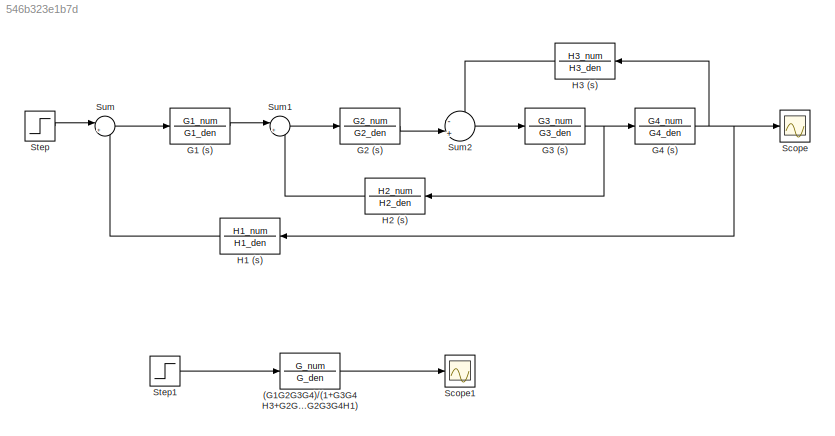
MODEL slx_546b323e1b7d
KIND model
CONFIG AbsTol = auto
CONFIG EnableMultiTasking = off
CONFIG FixedStep = auto
CONFIG MaxStep = auto
CONFIG MinStep = auto
CONFIG RelTol = 1e-3
CONFIG SampleTimeConstraint = Unconstrained
CONFIG SolverName = VariableStepAuto
CONFIG StartTime = 0.0
CONFIG StopTime = 20
BLOCK [TransferFcn] (G1G2G3G4)//(1+G3G4H3+G2G3H2+G1G2G3G4H1)
  Denominator = G_den
  Numerator = G_num
BLOCK [TransferFcn] G1 (s)
  Denominator = G1_den
  Numerator = G1_num
BLOCK [TransferFcn] G2 (s)
  Denominator = G2_den
  Numerator = G2_num
BLOCK [TransferFcn] G3 (s)
  Denominator = G3_den
  Numerator = G3_num
BLOCK [TransferFcn] G4 (s)
  Denominator = G4_den
  Numerator = G4_num
BLOCK [TransferFcn] H1 (s)
  Denominator = H1_den
  Numerator = H1_num
BLOCK [TransferFcn] H2 (s)
  Denominator = H2_den
  Numerator = H2_num
BLOCK [TransferFcn] H3 (s)
  Denominator = H3_den
  Numerator = H3_num
BLOCK [Scope] Scope
  Floating = off
  NumInputPorts = 1
  ScopeSpecificationString = Simulink.scopes.TimeScopeBlockCfg('CurrentConfiguration', extmgr.ConfigurationSet(extmgr.Configuration('Core','General UI',true),extmgr.Configuration('Core','Source UI',true),extmgr.Configuration('Sources','WiredSimulink',true),extmgr.Configuration('Visuals','Time Domain',true,'SerializedDisplays',{struct('MinYLimReal','-19768715178754.66406','MaxYLimReal','2196523908751.54541','YLabelReal','','Mi...<+1455ch>
BLOCK [Scope] Scope1
  Floating = off
  NumInputPorts = 1
  ScopeSpecificationString = Simulink.scopes.TimeScopeBlockCfg('CurrentConfiguration', extmgr.ConfigurationSet(extmgr.Configuration('Core','General UI',true),extmgr.Configuration('Core','Source UI',true),extmgr.Configuration('Sources','WiredSimulink',true,'DataLoggingVariableName','ScopeData1'),extmgr.Configuration('Visuals','Time Domain',true,'SerializedDisplays',{struct('MinYLimReal','-8050519124393.8584','MaxYLimReal','894...<+1591ch>
BLOCK [Step] Step
  SampleTime = 0
  Time = 0
BLOCK [Step] Step1
  SampleTime = 0
  Time = 0
BLOCK [Sum] Sum
  Inputs = |+-
BLOCK [Sum] Sum1
  Inputs = |+-
BLOCK [Sum] Sum2
  Inputs = -|+||
LINE (G1G2G3G4)//(1+G3G4H3+G2G3H2+G1G2G3G4H1):1 -> Scope1:1
LINE G1 (s):1 -> Sum1:1
LINE G2 (s):1 -> Sum2:2
NET G3 (s):1 -> G4 (s):1, H2 (s):1
NET G4 (s):1 -> H1 (s):1, H3 (s):1, Scope:1
LINE H1 (s):1 -> Sum:2
LINE H2 (s):1 -> Sum1:2
LINE H3 (s):1 -> Sum2:1
LINE Step1:1 -> (G1G2G3G4)//(1+G3G4H3+G2G3H2+G1G2G3G4H1):1
LINE Step:1 -> Sum:1
LINE Sum1:1 -> G2 (s):1
LINE Sum2:1 -> G3 (s):1
LINE Sum:1 -> G1 (s):1
note: NET lines group one-source signal fan-out (src -> all destinations, sorted); 1:1 wires keep LINE
